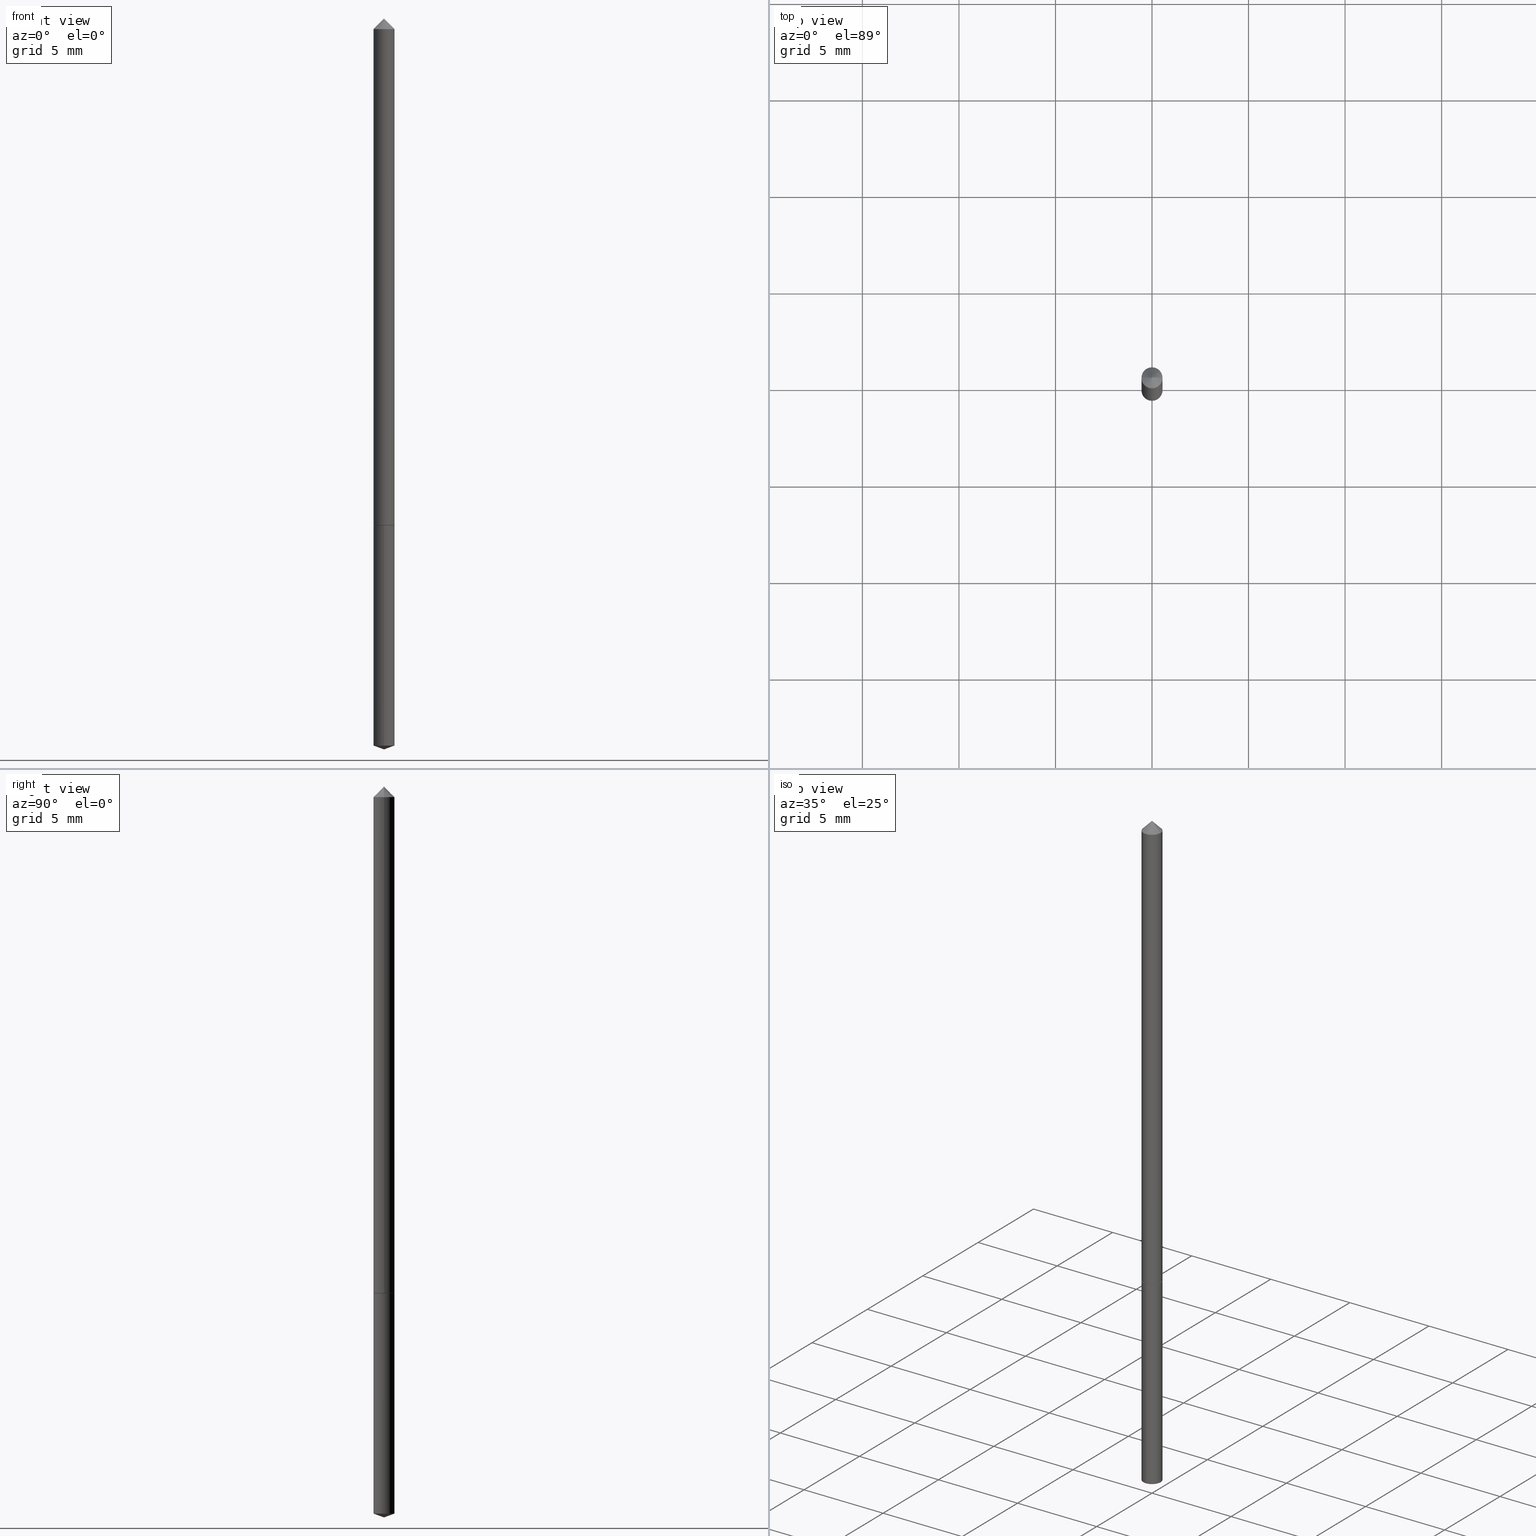
[diagram: canonical four-view strip — front | top / right | iso, engineering-drawing reading convention]
A machine part, canonical four-view strip (front | top / right | iso — engineering-drawing reading convention). The complete STEP part file that produces these views, byte-faithful:
ISO-10303-21;
HEADER;
FILE_DESCRIPTION (( 'STEP AP203' ),
    '1' );
FILE_NAME ('56057.STEP',
    '2024-04-22T20:08:57',
    ( '' ),
    ( '' ),
    'SwSTEP 2.0',
    'SolidWorks 2023',
    '' );
FILE_SCHEMA (( 'CONFIG_CONTROL_DESIGN' ));
ENDSEC;

DATA;
#1 = CARTESIAN_POINT ( 'NONE',  ( 2.550623964851097905E-29, -3.641615036413401595E-15, -1.043000000000000149 ) ) ;
#2 = APPROVAL_STATUS ( 'not_yet_approved' ) ;
#3 = DIRECTION ( 'NONE',  ( 2.445459886220220442E-29, -3.491494112740597755E-15, -1.000000000000000000 ) ) ;
#4 = AXIS2_PLACEMENT_3D ( 'NONE', #241, #244, #138 ) ;
#5 = APPROVAL_DATE_TIME ( #26, #184 ) ;
#6 = DIRECTION ( 'NONE',  ( 1.000000000000000000, -6.982962677686265922E-15, 4.876176775795935793E-29 ) ) ;
#7 = AXIS2_PLACEMENT_3D ( 'NONE', #104, #264, #71 ) ;
#8 = DIRECTION ( 'NONE',  ( 1.000000000000000000, -6.982962677686269077E-15, 0.000000000000000000 ) ) ;
#9 = VERTEX_POINT ( 'NONE', #14 ) ;
#10 = ADVANCED_FACE ( 'NONE', ( #192 ), #180, .T. ) ;
#11 = CARTESIAN_POINT ( 'NONE',  ( 0.02150000000000000522, -2.592424894091037817E-16, -0.03125000000000020123 ) ) ;
#12 = AXIS2_PLACEMENT_3D ( 'NONE', #102, #357, #213 ) ;
#13 = AXIS2_PLACEMENT_3D ( 'NONE', #133, #276, #347 ) ;
#14 = CARTESIAN_POINT ( 'NONE',  ( -1.501336975702182702E-16, -0.02150000000000521286, -1.492174639963277150 ) ) ;
#15 = ORIENTED_EDGE ( 'NONE', *, *, #62, .T. ) ;
#16 = ORIENTED_EDGE ( 'NONE', *, *, #87, .F. ) ;
#17 = CIRCLE ( 'NONE', #124, 0.02150000000000000175 ) ;
#18 = CONICAL_SURFACE ( 'NONE', #145, 0.02150000000000012665, 0.7853981633972733079 ) ;
#19 = DIRECTION ( 'NONE',  ( 2.445468806185136597E-29, -3.491481338843145583E-15, -1.000000000000000000 ) ) ;
#20 = LINE ( 'NONE', #83, #360 ) ;
#21 = FACE_OUTER_BOUND ( 'NONE', #165, .T. ) ;
#22 = EDGE_CURVE ( 'NONE', #189, #74, #66, .T. ) ;
#23 = ORGANIZATION ( 'UNSPECIFIED', 'UNSPECIFIED', '' ) ;
#24 = CALENDAR_DATE ( 2024, 22, 4 ) ;
#25 = CYLINDRICAL_SURFACE ( 'NONE', #4, 0.02150000000000006420 ) ;
#26 = DATE_AND_TIME ( #24, #243 ) ;
#27 = DIRECTION ( 'NONE',  ( 1.000000000000000000, -6.982962677686265922E-15, 0.000000000000000000 ) ) ;
#28 = EDGE_CURVE ( 'NONE', #67, #314, #318, .T. ) ;
#29 = UNCERTAINTY_MEASURE_WITH_UNIT (LENGTH_MEASURE( 1.000000000000000082E-05 ), #355, 'distance_accuracy_value', 'NONE');
#30 = DATE_AND_TIME ( #361, #159 ) ;
#31 = CARTESIAN_POINT ( 'NONE',  ( 0.02100000000000026845, -3.788257252644814994E-15, -1.043000000000000149 ) ) ;
#32 = CONICAL_SURFACE ( 'NONE', #305, 108.1684023407379840, 1.221730476396045040 ) ;
#33 = ORIENTED_EDGE ( 'NONE', *, *, #207, .F. ) ;
#34 = CC_DESIGN_DATE_AND_TIME_ASSIGNMENT ( #191, #50, ( #193 ) ) ;
#35 = VECTOR ( 'NONE', #170, 39.37007874015748143 ) ;
#36 = CONICAL_SURFACE ( 'NONE', #13, 108.1684023407379840, 1.221730476396045040 ) ;
#37 = EDGE_LOOP ( 'NONE', ( #157, #344, #346 ) ) ;
#38 = LINE ( 'NONE', #155, #72 ) ;
#39 = ORIENTED_EDGE ( 'NONE', *, *, #321, .F. ) ;
#40 = ORIENTED_EDGE ( 'NONE', *, *, #75, .F. ) ;
#41 = AXIS2_PLACEMENT_3D ( 'NONE', #134, #57, #176 ) ;
#42 = CYLINDRICAL_SURFACE ( 'NONE', #135, 0.02150000000000000175 ) ;
#43 = CARTESIAN_POINT ( 'NONE',  ( 2.549401230448005104E-29, -3.639869295743979302E-15, -1.042499999999999982 ) ) ;
#44 = CARTESIAN_POINT ( 'NONE',  ( 0.02150000000000006420, -1.501336975702551741E-16, 1.048378006796129180E-30 ) ) ;
#45 = DIRECTION ( 'NONE',  ( 1.000000000000000000, -6.982962677686269077E-15, 0.000000000000000000 ) ) ;
#46 = EDGE_CURVE ( 'NONE', #317, #229, #79, .T. ) ;
#47 = PRODUCT_RELATED_PRODUCT_CATEGORY ( 'detail', '', ( #345 ) ) ;
#48 = DIRECTION ( 'NONE',  ( -2.445459886220221003E-29, 3.491494112740597755E-15, 1.000000000000000000 ) ) ;
#49 = AXIS2_PLACEMENT_3D ( 'NONE', #327, #336, #303 ) ;
#50 = DATE_TIME_ROLE ( 'classification_date' ) ;
#51 = DIRECTION ( 'NONE',  ( -2.445468806185136877E-29, 3.491481338843145188E-15, 1.000000000000000000 ) ) ;
#52 = APPROVAL_STATUS ( 'not_yet_approved' ) ;
#53 = LINE ( 'NONE', #246, #272 ) ;
#54 = FACE_OUTER_BOUND ( 'NONE', #65, .T. ) ;
#55 = CARTESIAN_POINT ( 'NONE',  ( 1.527666881884470178E-16, 0.02149999999999635883, -1.043000000000000149 ) ) ;
#56 = PERSON_AND_ORGANIZATION_ROLE ( 'creator' ) ;
#57 = DIRECTION ( 'NONE',  ( -2.445468806185136597E-29, 3.491481338843145583E-15, 1.000000000000000000 ) ) ;
#58 = MANIFOLD_SOLID_BREP ( 'Body-Move/Copy2[2]', #118 ) ;
#59 = DIRECTION ( 'NONE',  ( -2.445459886220221003E-29, 3.491494112740597755E-15, 1.000000000000000000 ) ) ;
#60 = CIRCLE ( 'NONE', #158, 0.02100000000000026845 ) ;
#61 = AXIS2_PLACEMENT_3D ( 'NONE', #358, #137, #364 ) ;
#62 = EDGE_CURVE ( 'NONE', #238, #189, #262, .T. ) ;
#63 = ADVANCED_FACE ( 'NONE', ( #188 ), #42, .T. ) ;
#64 = VERTEX_POINT ( 'NONE', #286 ) ;
#65 = EDGE_LOOP ( 'NONE', ( #148, #234 ) ) ;
#66 = CIRCLE ( 'NONE', #7, 0.02150000000000012665 ) ;
#67 = VERTEX_POINT ( 'NONE', #132 ) ;
#68 = DIRECTION ( 'NONE',  ( -0.7071067811865452413, 2.468850131082233000E-15, -0.7071067811865497932 ) ) ;
#69 = ORIENTED_EDGE ( 'NONE', *, *, #140, .T. ) ;
#70 = ORIENTED_EDGE ( 'NONE', *, *, #75, .T. ) ;
#71 = DIRECTION ( 'NONE',  ( 1.000000000000000000, -6.982962677686269077E-15, 0.000000000000000000 ) ) ;
#72 = VECTOR ( 'NONE', #68, 39.37007874015748143 ) ;
#73 =( LENGTH_UNIT ( ) NAMED_UNIT ( * ) SI_UNIT ( $, .METRE. ) );
#74 = VERTEX_POINT ( 'NONE', #284 ) ;
#75 = EDGE_CURVE ( 'NONE', #74, #189, #325, .T. ) ;
#76 = ORIENTED_EDGE ( 'NONE', *, *, #263, .F. ) ;
#77 = PERSON_AND_ORGANIZATION ( #339, #23 ) ;
#78 = CARTESIAN_POINT ( 'NONE',  ( -0.02150000000000006420, 1.527666881884219961E-16, -1.057571044404808028E-30 ) ) ;
#79 = CIRCLE ( 'NONE', #171, 0.02150000000000000175 ) ;
#80 = DIRECTION ( 'NONE',  ( 1.000000000000000000, -6.982962677686265922E-15, 4.876176775795935232E-29 ) ) ;
#81 = COORDINATED_UNIVERSAL_TIME_OFFSET ( 5, 0, .BEHIND. ) ;
#82 = CYLINDRICAL_SURFACE ( 'NONE', #49, 0.02150000000000000175 ) ;
#83 = CARTESIAN_POINT ( 'NONE',  ( -1.501336975702292156E-16, -0.02150000000000364120, -1.042999999999999927 ) ) ;
#84 = AXIS2_PLACEMENT_3D ( 'NONE', #179, #329, #27 ) ;
#85 =( NAMED_UNIT ( * ) SI_UNIT ( $, .STERADIAN. ) SOLID_ANGLE_UNIT ( ) );
#86 = DIRECTION ( 'NONE',  ( 0.7071067811865452413, -7.319954787623248157E-15, -0.7071067811865497932 ) ) ;
#87 = EDGE_CURVE ( 'NONE', #229, #317, #210, .T. ) ;
#88 = CC_DESIGN_PERSON_AND_ORGANIZATION_ASSIGNMENT ( #330, #143, ( #193 ) ) ;
#89 = APPROVAL_ROLE ( '' ) ;
#90 = FACE_OUTER_BOUND ( 'NONE', #204, .T. ) ;
#91 = LINE ( 'NONE', #44, #343 ) ;
#92 = EDGE_CURVE ( 'NONE', #189, #67, #323, .T. ) ;
#93 = AXIS2_PLACEMENT_3D ( 'NONE', #131, #19, #103 ) ;
#94 = CC_DESIGN_APPROVAL ( #184, ( #285 ) ) ;
#95 = ORIENTED_EDGE ( 'NONE', *, *, #28, .F. ) ;
#96 = EDGE_LOOP ( 'NONE', ( #122, #208, #206, #95 ) ) ;
#97 = EDGE_CURVE ( 'NONE', #292, #74, #258, .T. ) ;
#98 = VECTOR ( 'NONE', #107, 39.37007874015748143 ) ;
#99 = ORIENTED_EDGE ( 'NONE', *, *, #207, .T. ) ;
#100 = CARTESIAN_POINT ( 'NONE',  ( 2.549401230448005104E-29, -3.639869295743979302E-15, -1.042499999999999982 ) ) ;
#101 = ORIENTED_EDGE ( 'NONE', *, *, #226, .F. ) ;
#102 = CARTESIAN_POINT ( 'NONE',  ( 2.550623964851097905E-29, -3.641615036413401595E-15, -1.043000000000000149 ) ) ;
#103 = DIRECTION ( 'NONE',  ( -1.000000000000000000, 6.982962677686265922E-15, 0.000000000000000000 ) ) ;
#104 = CARTESIAN_POINT ( 'NONE',  ( 2.549401230448005104E-29, -3.639869295743979302E-15, -1.042499999999999982 ) ) ;
#105 = ADVANCED_FACE ( 'NONE', ( #211 ), #197, .T. ) ;
#106 = CALENDAR_DATE ( 2024, 22, 4 ) ;
#107 = DIRECTION ( 'NONE',  ( -2.445459886220221283E-29, 3.491494112740597755E-15, 1.000000000000000000 ) ) ;
#108 = CIRCLE ( 'NONE', #324, 0.02150000000000000175 ) ;
#109 = CALENDAR_DATE ( 2024, 22, 4 ) ;
#110 = LINE ( 'NONE', #267, #35 ) ;
#111 = DIRECTION ( 'NONE',  ( -2.445459886220221003E-29, 3.491494112740597755E-15, 1.000000000000000000 ) ) ;
#112 = CC_DESIGN_DATE_AND_TIME_ASSIGNMENT ( #333, #141, ( #285 ) ) ;
#113 = FACE_OUTER_BOUND ( 'NONE', #315, .T. ) ;
#114 = AXIS2_PLACEMENT_3D ( 'NONE', #100, #354, #45 ) ;
#115 = CC_DESIGN_APPROVAL ( #348, ( #250 ) ) ;
#116 = CARTESIAN_POINT ( 'NONE',  ( 7.642090019328601786E-31, -1.091087918388490144E-16, -0.03125000000000020123 ) ) ;
#117 = EDGE_CURVE ( 'NONE', #64, #314, #319, .T. ) ;
#118 = CLOSED_SHELL ( 'NONE', ( #10, #255, #316, #259, #105, #228, #298 ) ) ;
#119 = ORIENTED_EDGE ( 'NONE', *, *, #226, .T. ) ;
#120 = SHAPE_DEFINITION_REPRESENTATION ( #252, #139 ) ;
#121 = CARTESIAN_POINT ( 'NONE',  ( -1.501336975702292156E-16, -0.02150000000000364120, -1.042999999999999927 ) ) ;
#122 = ORIENTED_EDGE ( 'NONE', *, *, #92, .F. ) ;
#123 = ORIENTED_EDGE ( 'NONE', *, *, #183, .T. ) ;
#124 = AXIS2_PLACEMENT_3D ( 'NONE', #195, #111, #295 ) ;
#125 = DIRECTION ( 'NONE',  ( -0.7071067811864237829, 7.493145998869907665E-15, 0.7071067811866712516 ) ) ;
#126 = DIRECTION ( 'NONE',  ( -2.445459886220221003E-29, 3.491494112740597755E-15, 1.000000000000000000 ) ) ;
#127 = DIRECTION ( 'NONE',  ( -6.982962677686265922E-15, -1.000000000000000000, 6.353134868986658336E-15 ) ) ;
#128 = DIRECTION ( 'NONE',  ( -2.445468806185136877E-29, 3.491481338843145188E-15, 1.000000000000000000 ) ) ;
#129 = ORIENTED_EDGE ( 'NONE', *, *, #97, .F. ) ;
#130 = AXIS2_PLACEMENT_3D ( 'NONE', #1, #3, #266 ) ;
#131 = CARTESIAN_POINT ( 'NONE',  ( 7.642090019328601786E-31, -1.091087918388490144E-16, -0.03125000000000020123 ) ) ;
#132 = CARTESIAN_POINT ( 'NONE',  ( -0.02150000000000000522, -1.721722355602989962E-15, -0.03125000000000020123 ) ) ;
#133 = CARTESIAN_POINT ( 'NONE',  ( -9.260974914353291756E-28, 1.322231702934577596E-13, 37.87007874015748143 ) ) ;
#134 = CARTESIAN_POINT ( 'NONE',  ( 2.550623964851097905E-29, -3.641615036413401595E-15, -1.043000000000000149 ) ) ;
#135 = AXIS2_PLACEMENT_3D ( 'NONE', #257, #48, #127 ) ;
#136 = APPROVAL_PERSON_ORGANIZATION ( #240, #184, #215 ) ;
#137 = DIRECTION ( 'NONE',  ( 0.000000000000000000, 0.000000000000000000, 1.000000000000000000 ) ) ;
#138 = DIRECTION ( 'NONE',  ( 1.000000000000000000, -6.982962677686265922E-15, 4.876176775795935232E-29 ) ) ;
#139 = ADVANCED_BREP_SHAPE_REPRESENTATION ( '56057', ( #177, #58, #61 ), #261 ) ;
#140 = EDGE_CURVE ( 'NONE', #353, #9, #53, .T. ) ;
#141 = DATE_TIME_ROLE ( 'creation_date' ) ;
#142 = DIRECTION ( 'NONE',  ( -2.438088387897960049E-29, 3.491481338843145188E-15, 1.000000000000000000 ) ) ;
#143 = PERSON_AND_ORGANIZATION_ROLE ( 'classification_officer' ) ;
#144 = FACE_OUTER_BOUND ( 'NONE', #37, .T. ) ;
#145 = AXIS2_PLACEMENT_3D ( 'NONE', #181, #147, #8 ) ;
#146 = PERSON_AND_ORGANIZATION ( #339, #23 ) ;
#147 = DIRECTION ( 'NONE',  ( -2.445468806185136597E-29, 3.491481338843145583E-15, 1.000000000000000000 ) ) ;
#148 = ORIENTED_EDGE ( 'NONE', *, *, #289, .F. ) ;
#149 = VECTOR ( 'NONE', #86, 39.37007874015748143 ) ;
#150 = AXIS2_PLACEMENT_3D ( 'NONE', #116, #362, #223 ) ;
#151 = COORDINATED_UNIVERSAL_TIME_OFFSET ( 5, 0, .BEHIND. ) ;
#152 = ORIENTED_EDGE ( 'NONE', *, *, #22, .F. ) ;
#153 = ADVANCED_FACE ( 'NONE', ( #113 ), #221, .F. ) ;
#154 = CC_DESIGN_PERSON_AND_ORGANIZATION_ASSIGNMENT ( #217, #219, ( #250 ) ) ;
#155 = CARTESIAN_POINT ( 'NONE',  ( -0.02150000000000000522, 4.102490573140574679E-17, -0.03125000000000020123 ) ) ;
#156 = ORIENTED_EDGE ( 'NONE', *, *, #62, .F. ) ;
#157 = ORIENTED_EDGE ( 'NONE', *, *, #117, .F. ) ;
#158 = AXIS2_PLACEMENT_3D ( 'NONE', #174, #247, #297 ) ;
#159 = LOCAL_TIME ( 16, 8, 57.00000000000000000, #293 ) ;
#160 = DIRECTION ( 'NONE',  ( -6.982962677686265922E-15, -1.000000000000000000, 6.353134868986658336E-15 ) ) ;
#161 = DIRECTION ( 'NONE',  ( 1.000000000000000000, -6.982962677686269077E-15, 0.000000000000000000 ) ) ;
#162 = LENGTH_MEASURE_WITH_UNIT ( LENGTH_MEASURE( 0.02539999999999999897 ), #73 );
#163 = CARTESIAN_POINT ( 'NONE',  ( 0.02150000000000000522, -2.566094987909369350E-16, -0.03125000000000020123 ) ) ;
#164 = DIRECTION ( 'NONE',  ( -6.982962677686267499E-15, -1.000000000000000000, 3.475157955500575064E-15 ) ) ;
#165 = EDGE_LOOP ( 'NONE', ( #76, #99, #224, #16 ) ) ;
#166 = DIRECTION ( 'NONE',  ( 1.000000000000000000, -6.982962677686265922E-15, 0.000000000000000000 ) ) ;
#167 = PERSON_AND_ORGANIZATION ( #339, #23 ) ;
#168 = DIRECTION ( 'NONE',  ( -6.561838499445234773E-15, -0.9396926207859120916, 0.3420201433256585544 ) ) ;
#169 = APPLICATION_PROTOCOL_DEFINITION ( 'international standard', 'config_control_design', 1994, #251 ) ;
#170 = DIRECTION ( 'NONE',  ( 6.676917655468002839E-15, 0.9396926207859144231, 0.3420201433256520041 ) ) ;
#171 = AXIS2_PLACEMENT_3D ( 'NONE', #190, #282, #160 ) ;
#172 = APPROVAL ( #335, 'UNSPECIFIED' ) ;
#173 = DIMENSIONAL_EXPONENTS ( 1.000000000000000000, 0.000000000000000000, 0.000000000000000000, 0.000000000000000000, 0.000000000000000000, 0.000000000000000000, 0.000000000000000000 ) ;
#174 = CARTESIAN_POINT ( 'NONE',  ( 2.550623964851097905E-29, -3.641615036413401595E-15, -1.043000000000000149 ) ) ;
#175 = PERSON_AND_ORGANIZATION_ROLE ( 'creator' ) ;
#176 = DIRECTION ( 'NONE',  ( 1.000000000000000000, -6.982962677686266711E-15, 0.000000000000000000 ) ) ;
#177 = MANIFOLD_SOLID_BREP ( 'Body-Move/Copy2[1]', #311 ) ;
#178 = EDGE_CURVE ( 'NONE', #353, #203, #110, .T. ) ;
#179 = CARTESIAN_POINT ( 'NONE',  ( 7.642090019328601786E-31, -1.091087918388490144E-16, -0.03125000000000020123 ) ) ;
#180 = CONICAL_SURFACE ( 'NONE', #93, 0.02150000000000000522, 0.7853981633974450594 ) ;
#181 = CARTESIAN_POINT ( 'NONE',  ( 2.549401230448005104E-29, -3.639869295743979302E-15, -1.042499999999999982 ) ) ;
#182 = EDGE_LOOP ( 'NONE', ( #70, #306, #101, #253 ) ) ;
#183 = EDGE_CURVE ( 'NONE', #9, #203, #17, .T. ) ;
#184 = APPROVAL ( #52, 'UNSPECIFIED' ) ;
#185 = ORIENTED_EDGE ( 'NONE', *, *, #178, .T. ) ;
#186 = ORIENTED_EDGE ( 'NONE', *, *, #46, .F. ) ;
#187 = ORIENTED_EDGE ( 'NONE', *, *, #117, .T. ) ;
#188 = FACE_OUTER_BOUND ( 'NONE', #349, .T. ) ;
#189 = VERTEX_POINT ( 'NONE', #196 ) ;
#190 = CARTESIAN_POINT ( 'NONE',  ( 2.550623964851097905E-29, -3.641615036413401595E-15, -1.043000000000000149 ) ) ;
#191 = DATE_AND_TIME ( #109, #236 ) ;
#192 = FACE_OUTER_BOUND ( 'NONE', #307, .T. ) ;
#193 = SECURITY_CLASSIFICATION ( '', '', #270 ) ;
#194 = FACE_OUTER_BOUND ( 'NONE', #96, .T. ) ;
#195 = CARTESIAN_POINT ( 'NONE',  ( 3.649062528788701556E-29, -5.209905647437560754E-15, -1.492174639963277150 ) ) ;
#196 = CARTESIAN_POINT ( 'NONE',  ( -0.02150000000000012665, -3.487102607555557232E-15, -1.042499999999999982 ) ) ;
#197 = CONICAL_SURFACE ( 'NONE', #114, 0.02150000000000012665, 0.7853981633972733079 ) ;
#198 = MECHANICAL_CONTEXT ( 'NONE', #233, 'mechanical' ) ;
#199 = CYLINDRICAL_SURFACE ( 'NONE', #290, 0.02150000000000006420 ) ;
#200 = CARTESIAN_POINT ( 'NONE',  ( 3.649062528788701556E-29, -5.209905647437560754E-15, -1.492174639963277150 ) ) ;
#201 = CIRCLE ( 'NONE', #41, 0.02100000000000026845 ) ;
#202 = CONICAL_SURFACE ( 'NONE', #150, 0.02150000000000000522, 0.7853981633974450594 ) ;
#203 = VERTEX_POINT ( 'NONE', #249 ) ;
#204 = EDGE_LOOP ( 'NONE', ( #275, #69, #33 ) ) ;
#205 = AXIS2_PLACEMENT_3D ( 'NONE', #43, #239, #161 ) ;
#206 = ORIENTED_EDGE ( 'NONE', *, *, #337, .T. ) ;
#207 = EDGE_CURVE ( 'NONE', #203, #9, #108, .T. ) ;
#208 = ORIENTED_EDGE ( 'NONE', *, *, #22, .T. ) ;
#209 = ORIENTED_EDGE ( 'NONE', *, *, #87, .T. ) ;
#210 = CIRCLE ( 'NONE', #12, 0.02150000000000000175 ) ;
#211 = FACE_OUTER_BOUND ( 'NONE', #281, .T. ) ;
#212 = CARTESIAN_POINT ( 'NONE',  ( 7.642090019328601786E-31, -1.091087918388490144E-16, -0.03125000000000020123 ) ) ;
#213 = DIRECTION ( 'NONE',  ( -6.982962677686265922E-15, -1.000000000000000000, 6.353134868986658336E-15 ) ) ;
#214 = CIRCLE ( 'NONE', #84, 0.02150000000000000522 ) ;
#215 = APPROVAL_ROLE ( '' ) ;
#216 = CARTESIAN_POINT ( 'NONE',  ( 0.000000000000000000, 0.000000000000000000, 0.000000000000000000 ) ) ;
#217 = PERSON_AND_ORGANIZATION ( #339, #23 ) ;
#218 = DIRECTION ( 'NONE',  ( -6.982962677686265922E-15, -1.000000000000000000, 0.000000000000000000 ) ) ;
#219 = PERSON_AND_ORGANIZATION_ROLE ( 'design_supplier' ) ;
#220 = CARTESIAN_POINT ( 'NONE',  ( 1.527666881884581112E-16, 0.02149999999999636230, -1.043000000000000149 ) ) ;
#221 = PLANE ( 'NONE',  #130 ) ;
#222 = LOCAL_TIME ( 16, 8, 57.00000000000000000, #151 ) ;
#223 = DIRECTION ( 'NONE',  ( -1.000000000000000000, 6.982962677686265922E-15, 0.000000000000000000 ) ) ;
#224 = ORIENTED_EDGE ( 'NONE', *, *, #283, .T. ) ;
#225 = APPROVAL_PERSON_ORGANIZATION ( #242, #348, #245 ) ;
#226 = EDGE_CURVE ( 'NONE', #314, #67, #214, .T. ) ;
#227 = ORIENTED_EDGE ( 'NONE', *, *, #263, .T. ) ;
#228 = ADVANCED_FACE ( 'NONE', ( #194 ), #25, .T. ) ;
#229 = VERTEX_POINT ( 'NONE', #220 ) ;
#230 = VECTOR ( 'NONE', #232, 39.37007874015748143 ) ;
#231 = LOCAL_TIME ( 16, 8, 57.00000000000000000, #81 ) ;
#232 = DIRECTION ( 'NONE',  ( 0.7071067811864237829, -2.468850131080960568E-15, 0.7071067811866712516 ) ) ;
#233 = APPLICATION_CONTEXT ( 'configuration controlled 3d designs of mechanical parts and assemblies' ) ;
#234 = ORIENTED_EDGE ( 'NONE', *, *, #274, .F. ) ;
#235 = CARTESIAN_POINT ( 'NONE',  ( 0.02150000000000012665, -3.790002993314234920E-15, -1.042499999999999982 ) ) ;
#236 = LOCAL_TIME ( 16, 8, 57.00000000000000000, #291 ) ;
#237 = ADVANCED_FACE ( 'NONE', ( #21 ), #82, .T. ) ;
#238 = VERTEX_POINT ( 'NONE', #294 ) ;
#239 = DIRECTION ( 'NONE',  ( -2.445468806185136597E-29, 3.491481338843145583E-15, 1.000000000000000000 ) ) ;
#240 = PERSON_AND_ORGANIZATION ( #339, #23 ) ;
#241 = CARTESIAN_POINT ( 'NONE',  ( 0.000000000000000000, 0.000000000000000000, 0.000000000000000000 ) ) ;
#242 = PERSON_AND_ORGANIZATION ( #339, #23 ) ;
#243 = LOCAL_TIME ( 16, 8, 57.00000000000000000, #268 ) ;
#244 = DIRECTION ( 'NONE',  ( -2.445468806185136597E-29, 3.491481338843145583E-15, 1.000000000000000000 ) ) ;
#245 = APPROVAL_ROLE ( '' ) ;
#246 = CARTESIAN_POINT ( 'NONE',  ( 3.668189829330331224E-29, -5.237241169110896632E-15, -1.500000000000000222 ) ) ;
#247 = DIRECTION ( 'NONE',  ( -2.445468806185136597E-29, 3.491481338843145583E-15, 1.000000000000000000 ) ) ;
#248 = CC_DESIGN_PERSON_AND_ORGANIZATION_ASSIGNMENT ( #167, #56, ( #250 ) ) ;
#249 = CARTESIAN_POINT ( 'NONE',  ( 1.527666881884580372E-16, 0.02149999999999479411, -1.492174639963277150 ) ) ;
#250 = PRODUCT_DEFINITION_FORMATION_WITH_SPECIFIED_SOURCE ( 'ANY', '', #345, .NOT_KNOWN. ) ;
#251 = APPLICATION_CONTEXT ( 'configuration controlled 3d designs of mechanical parts and assemblies' ) ;
#252 = PRODUCT_DEFINITION_SHAPE ( 'NONE', 'NONE',  #285 ) ;
#253 = ORIENTED_EDGE ( 'NONE', *, *, #337, .F. ) ;
#254 = EDGE_LOOP ( 'NONE', ( #356, #185, #260 ) ) ;
#255 = ADVANCED_FACE ( 'NONE', ( #334 ), #199, .T. ) ;
#256 = CARTESIAN_POINT ( 'NONE',  ( 3.668189829330331224E-29, -5.237241169110896632E-15, -1.500000000000000222 ) ) ;
#257 = CARTESIAN_POINT ( 'NONE',  ( 2.550623964851097905E-29, -3.641615036413401595E-15, -1.043000000000000149 ) ) ;
#258 = LINE ( 'NONE', #235, #230 ) ;
#259 = ADVANCED_FACE ( 'NONE', ( #54 ), #332, .F. ) ;
#260 = ORIENTED_EDGE ( 'NONE', *, *, #183, .F. ) ;
#261 =( GEOMETRIC_REPRESENTATION_CONTEXT ( 3 ) GLOBAL_UNCERTAINTY_ASSIGNED_CONTEXT ( ( #29 ) ) GLOBAL_UNIT_ASSIGNED_CONTEXT ( ( #355, #280, #85 ) ) REPRESENTATION_CONTEXT ( 'NONE', 'WORKASPACE' ) );
#262 = LINE ( 'NONE', #288, #341 ) ;
#263 = EDGE_CURVE ( 'NONE', #203, #229, #271, .T. ) ;
#264 = DIRECTION ( 'NONE',  ( -2.445468806185136597E-29, 3.491481338843145583E-15, 1.000000000000000000 ) ) ;
#265 = PERSON_AND_ORGANIZATION ( #339, #23 ) ;
#266 = DIRECTION ( 'NONE',  ( 6.982962677686265922E-15, 1.000000000000000000, -3.491494112740597755E-15 ) ) ;
#267 = CARTESIAN_POINT ( 'NONE',  ( 3.668208599538981699E-29, -5.237214522760812533E-15, -1.500000000000000222 ) ) ;
#268 = COORDINATED_UNIVERSAL_TIME_OFFSET ( 5, 0, .BEHIND. ) ;
#269 = CARTESIAN_POINT ( 'NONE',  ( 7.287928122433699567E-29, 3.142474147852810550E-15, -1.043000000000000149 ) ) ;
#270 = SECURITY_CLASSIFICATION_LEVEL ( 'unclassified' ) ;
#271 = LINE ( 'NONE', #55, #98 ) ;
#272 = VECTOR ( 'NONE', #168, 39.37007874015748143 ) ;
#273 = CC_DESIGN_SECURITY_CLASSIFICATION ( #193, ( #250 ) ) ;
#274 = EDGE_CURVE ( 'NONE', #238, #292, #60, .T. ) ;
#275 = ORIENTED_EDGE ( 'NONE', *, *, #178, .F. ) ;
#276 = DIRECTION ( 'NONE',  ( -2.445459886220221003E-29, 3.491494112740597755E-15, 1.000000000000000000 ) ) ;
#277 = ORIENTED_EDGE ( 'NONE', *, *, #46, .T. ) ;
#278 = AXIS2_PLACEMENT_3D ( 'NONE', #212, #320, #166 ) ;
#279 = ORIENTED_EDGE ( 'NONE', *, *, #283, .F. ) ;
#280 =( NAMED_UNIT ( * ) PLANE_ANGLE_UNIT ( ) SI_UNIT ( $, .RADIAN. ) );
#281 = EDGE_LOOP ( 'NONE', ( #156, #309, #340, #152 ) ) ;
#282 = DIRECTION ( 'NONE',  ( -2.445459886220221003E-29, 3.491494112740597755E-15, 1.000000000000000000 ) ) ;
#283 = EDGE_CURVE ( 'NONE', #9, #317, #20, .T. ) ;
#284 = CARTESIAN_POINT ( 'NONE',  ( 0.02150000000000012665, -3.790002993314234920E-15, -1.042499999999999982 ) ) ;
#285 = PRODUCT_DEFINITION ( 'UNKNOWN', '', #250, #351 ) ;
#286 = CARTESIAN_POINT ( 'NONE',  ( 2.384332086030522780E-31, -3.404194305372087882E-17, -0.009750000000000058967 ) ) ;
#287 = FACE_OUTER_BOUND ( 'NONE', #254, .T. ) ;
#288 = CARTESIAN_POINT ( 'NONE',  ( -0.02150000000000012665, -3.487102607555557232E-15, -1.042499999999999982 ) ) ;
#289 = EDGE_CURVE ( 'NONE', #292, #238, #201, .T. ) ;
#290 = AXIS2_PLACEMENT_3D ( 'NONE', #216, #359, #80 ) ;
#291 = COORDINATED_UNIVERSAL_TIME_OFFSET ( 5, 0, .BEHIND. ) ;
#292 = VERTEX_POINT ( 'NONE', #31 ) ;
#293 = COORDINATED_UNIVERSAL_TIME_OFFSET ( 5, 0, .BEHIND. ) ;
#294 = CARTESIAN_POINT ( 'NONE',  ( -0.02100000000000026845, -3.489751834729667645E-15, -1.043000000000000149 ) ) ;
#295 = DIRECTION ( 'NONE',  ( -6.982962677686265922E-15, -1.000000000000000000, 0.000000000000000000 ) ) ;
#296 = VECTOR ( 'NONE', #51, 39.37007874015748143 ) ;
#297 = DIRECTION ( 'NONE',  ( 1.000000000000000000, -6.982962677686266711E-15, 0.000000000000000000 ) ) ;
#298 = ADVANCED_FACE ( 'NONE', ( #144 ), #202, .T. ) ;
#299 = ADVANCED_FACE ( 'NONE', ( #90 ), #36, .T. ) ;
#300 = APPROVAL_DATE_TIME ( #30, #348 ) ;
#301 = DIRECTION ( 'NONE',  ( -2.445459886220221283E-29, 3.491494112740597755E-15, 1.000000000000000000 ) ) ;
#302 = DATE_AND_TIME ( #308, #222 ) ;
#303 = DIRECTION ( 'NONE',  ( -6.982962677686265922E-15, -1.000000000000000000, 6.353134868986658336E-15 ) ) ;
#304 = AXIS2_PLACEMENT_3D ( 'NONE', #269, #142, #6 ) ;
#305 = AXIS2_PLACEMENT_3D ( 'NONE', #322, #126, #164 ) ;
#306 = ORIENTED_EDGE ( 'NONE', *, *, #92, .T. ) ;
#307 = EDGE_LOOP ( 'NONE', ( #39, #187, #119 ) ) ;
#308 = CALENDAR_DATE ( 2024, 22, 4 ) ;
#309 = ORIENTED_EDGE ( 'NONE', *, *, #274, .T. ) ;
#310 = EDGE_LOOP ( 'NONE', ( #352, #15, #40, #129 ) ) ;
#311 = CLOSED_SHELL ( 'NONE', ( #63, #363, #299, #237, #153 ) ) ;
#312 = APPROVAL_PERSON_ORGANIZATION ( #146, #172, #89 ) ;
#313 = CC_DESIGN_PERSON_AND_ORGANIZATION_ASSIGNMENT ( #77, #175, ( #285 ) ) ;
#314 = VERTEX_POINT ( 'NONE', #11 ) ;
#315 = EDGE_LOOP ( 'NONE', ( #277, #209 ) ) ;
#316 = ADVANCED_FACE ( 'NONE', ( #342 ), #18, .T. ) ;
#317 = VERTEX_POINT ( 'NONE', #121 ) ;
#318 = CIRCLE ( 'NONE', #278, 0.02150000000000000522 ) ;
#319 = LINE ( 'NONE', #163, #149 ) ;
#320 = DIRECTION ( 'NONE',  ( -2.445468806185136597E-29, 3.491481338843145583E-15, 1.000000000000000000 ) ) ;
#321 = EDGE_CURVE ( 'NONE', #64, #67, #38, .T. ) ;
#322 = CARTESIAN_POINT ( 'NONE',  ( -9.260974914353291756E-28, 1.322231702934577596E-13, 37.87007874015748143 ) ) ;
#323 = LINE ( 'NONE', #78, #296 ) ;
#324 = AXIS2_PLACEMENT_3D ( 'NONE', #200, #59, #218 ) ;
#325 = CIRCLE ( 'NONE', #205, 0.02150000000000012665 ) ;
#326 = APPLICATION_PROTOCOL_DEFINITION ( 'international standard', 'config_control_design', 1994, #233 ) ;
#327 = CARTESIAN_POINT ( 'NONE',  ( 2.550623964851097905E-29, -3.641615036413401595E-15, -1.043000000000000149 ) ) ;
#328 = PERSON_AND_ORGANIZATION_ROLE ( 'design_owner' ) ;
#329 = DIRECTION ( 'NONE',  ( -2.445468806185136597E-29, 3.491481338843145583E-15, 1.000000000000000000 ) ) ;
#330 = PERSON_AND_ORGANIZATION ( #339, #23 ) ;
#331 = CC_DESIGN_PERSON_AND_ORGANIZATION_ASSIGNMENT ( #265, #328, ( #345 ) ) ;
#332 = PLANE ( 'NONE',  #304 ) ;
#333 = DATE_AND_TIME ( #106, #231 ) ;
#334 = FACE_OUTER_BOUND ( 'NONE', #182, .T. ) ;
#335 = APPROVAL_STATUS ( 'not_yet_approved' ) ;
#336 = DIRECTION ( 'NONE',  ( -2.445459886220221003E-29, 3.491494112740597755E-15, 1.000000000000000000 ) ) ;
#337 = EDGE_CURVE ( 'NONE', #74, #314, #91, .T. ) ;
#338 = APPROVAL_DATE_TIME ( #302, #172 ) ;
#339 = PERSON ( 'UNSPECIFIED', 'UNSPECIFIED', 'UNSPECIFIED', ('UNSPECIFIED'), ('UNSPECIFIED'), ('UNSPECIFIED') ) ;
#340 = ORIENTED_EDGE ( 'NONE', *, *, #97, .T. ) ;
#341 = VECTOR ( 'NONE', #125, 39.37007874015748143 ) ;
#342 = FACE_OUTER_BOUND ( 'NONE', #310, .T. ) ;
#343 = VECTOR ( 'NONE', #128, 39.37007874015748143 ) ;
#344 = ORIENTED_EDGE ( 'NONE', *, *, #321, .T. ) ;
#345 = PRODUCT ( '56057', '56057', '', ( #198 ) ) ;
#346 = ORIENTED_EDGE ( 'NONE', *, *, #28, .T. ) ;
#347 = DIRECTION ( 'NONE',  ( -6.982962677686267499E-15, -1.000000000000000000, 3.475157955500575064E-15 ) ) ;
#348 = APPROVAL ( #2, 'UNSPECIFIED' ) ;
#349 = EDGE_LOOP ( 'NONE', ( #123, #227, #186, #279 ) ) ;
#350 = CC_DESIGN_APPROVAL ( #172, ( #193 ) ) ;
#351 = DESIGN_CONTEXT ( 'detailed design', #251, 'design' ) ;
#352 = ORIENTED_EDGE ( 'NONE', *, *, #289, .T. ) ;
#353 = VERTEX_POINT ( 'NONE', #256 ) ;
#354 = DIRECTION ( 'NONE',  ( -2.445468806185136597E-29, 3.491481338843145583E-15, 1.000000000000000000 ) ) ;
#355 =( CONVERSION_BASED_UNIT ( 'INCH', #162 ) LENGTH_UNIT ( ) NAMED_UNIT ( #173 ) );
#356 = ORIENTED_EDGE ( 'NONE', *, *, #140, .F. ) ;
#357 = DIRECTION ( 'NONE',  ( -2.445459886220221003E-29, 3.491494112740597755E-15, 1.000000000000000000 ) ) ;
#358 = CARTESIAN_POINT ( 'NONE',  ( 0.000000000000000000, 0.000000000000000000, 0.000000000000000000 ) ) ;
#359 = DIRECTION ( 'NONE',  ( -2.445468806185136597E-29, 3.491481338843145583E-15, 1.000000000000000000 ) ) ;
#360 = VECTOR ( 'NONE', #301, 39.37007874015748143 ) ;
#361 = CALENDAR_DATE ( 2024, 22, 4 ) ;
#362 = DIRECTION ( 'NONE',  ( 2.445468806185136597E-29, -3.491481338843145583E-15, -1.000000000000000000 ) ) ;
#363 = ADVANCED_FACE ( 'NONE', ( #287 ), #32, .T. ) ;
#364 = DIRECTION ( 'NONE',  ( 1.000000000000000000, 0.000000000000000000, 0.000000000000000000 ) ) ;
ENDSEC;
END-ISO-10303-21;
